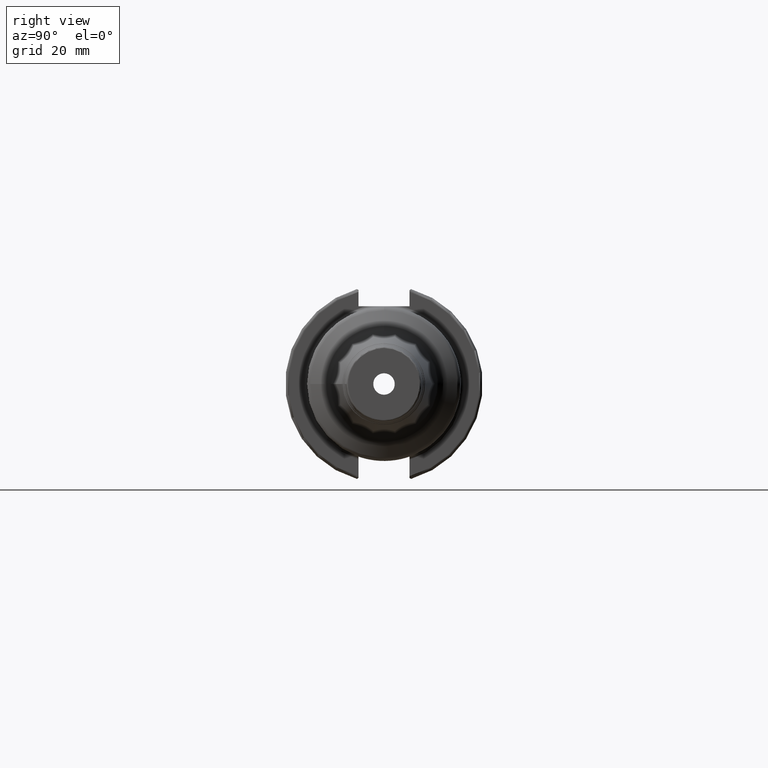
[diagram: clean part render]
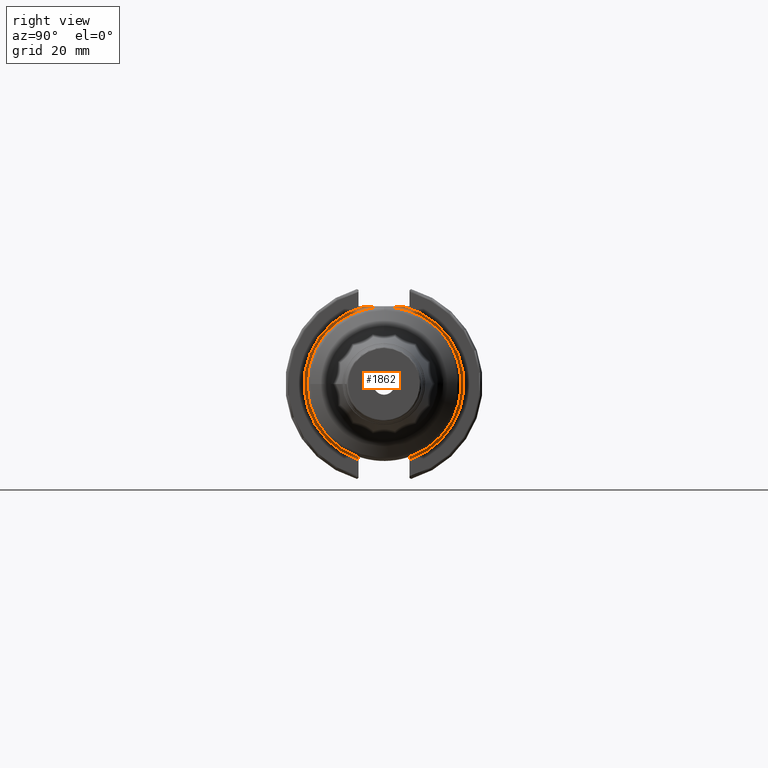
[diagram: same view with one face highlighted and labeled with its STEP entity id]
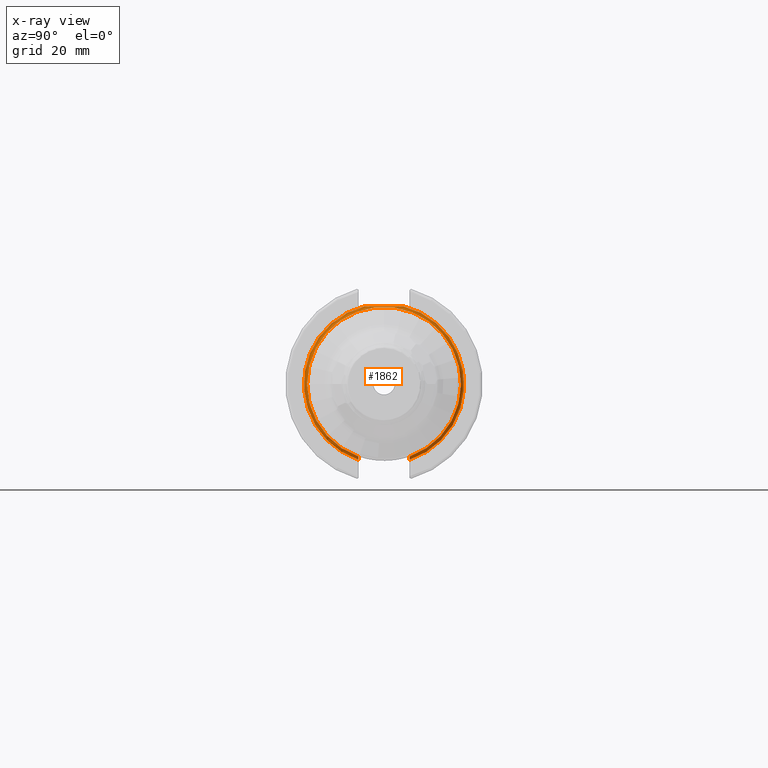
[diagram: x-ray of the same camera — body ghosted, the highlighted face saturated]
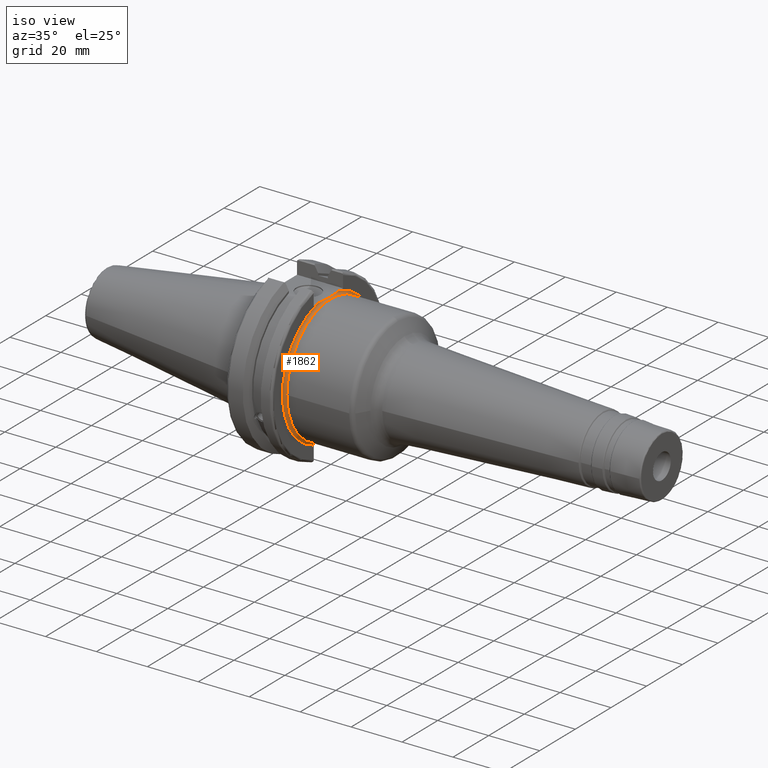
[diagram: same view with one face highlighted and labeled with its STEP entity id]
A machine part, right view. The second image highlights one B-rep face of the part: STEP entity #1862.
The next image is the same camera in x-ray: the body ghosted, the highlighted face saturated — about 3% of this face is hidden behind the body in this view.
A second angle (iso view) of the same face is appended — the face is thin or edge-on in the first view.
In plain terms, the highlighted toroidal blend (fillet) surface has major radius 25.75 mm and minor (blend) radius 1 mm.
Its self-contained STEP definition (entity closure, byte-faithful):
#82=B_SPLINE_CURVE_WITH_KNOTS('',3,(#2953,#2954,#2955,#2956,#2957,#2958,
#2959,#2960,#2961,#2962),.UNSPECIFIED.,.F.,.F.,(4,2,2,2,4),(1.28229186042809,
1.47392183654147,1.862003561099,2.25008528565653,2.44171526176991),
 .UNSPECIFIED.);
#83=B_SPLINE_CURVE_WITH_KNOTS('',3,(#2966,#2967,#2968,#2969,#2970,#2971,
#2972,#2973,#2974,#2975),.UNSPECIFIED.,.F.,.F.,(4,2,2,2,4),(0.152036209068872,
0.19179652975479,0.230554749961229,0.268011696377573,0.304368806480559),
 .UNSPECIFIED.);
#84=B_SPLINE_CURVE_WITH_KNOTS('',3,(#2981,#2982,#2983,#2984,#2985,#2986,
#2987,#2988,#2989,#2990),.UNSPECIFIED.,.F.,.F.,(4,2,2,2,4),(0.304368806480559,
0.340725916583545,0.378182862999889,0.416941083206328,0.456701403892246),
 .UNSPECIFIED.);
#401=FACE_OUTER_BOUND('',#510,.T.);
#510=EDGE_LOOP('',(#1342,#1343,#1344,#1345,#1346,#1347,#1348));
#660=CIRCLE('',#2041,25.75);
#661=CIRCLE('',#2042,24.75);
#662=CIRCLE('',#2043,24.75);
#663=CIRCLE('',#2044,25.75);
#780=VERTEX_POINT('',#2951);
#781=VERTEX_POINT('',#2952);
#782=VERTEX_POINT('',#2963);
#783=VERTEX_POINT('',#2965);
#784=VERTEX_POINT('',#2976);
#785=VERTEX_POINT('',#2978);
#786=VERTEX_POINT('',#2980);
#993=EDGE_CURVE('',#780,#781,#82,.F.);
#994=EDGE_CURVE('',#780,#782,#660,.T.);
#995=EDGE_CURVE('',#782,#783,#83,.T.);
#996=EDGE_CURVE('',#783,#784,#661,.T.);
#997=EDGE_CURVE('',#784,#785,#662,.T.);
#998=EDGE_CURVE('',#785,#786,#84,.T.);
#999=EDGE_CURVE('',#786,#781,#663,.T.);
#1342=ORIENTED_EDGE('',*,*,#993,.F.);
#1343=ORIENTED_EDGE('',*,*,#994,.T.);
#1344=ORIENTED_EDGE('',*,*,#995,.T.);
#1345=ORIENTED_EDGE('',*,*,#996,.T.);
#1346=ORIENTED_EDGE('',*,*,#997,.T.);
#1347=ORIENTED_EDGE('',*,*,#998,.T.);
#1348=ORIENTED_EDGE('',*,*,#999,.T.);
#1834=TOROIDAL_SURFACE('',#2040,25.75,1.);
#1862=ADVANCED_FACE('',(#401),#1834,.F.);
#2040=AXIS2_PLACEMENT_3D('',#2950,#2372,#2373);
#2041=AXIS2_PLACEMENT_3D('',#2964,#2374,#2375);
#2042=AXIS2_PLACEMENT_3D('',#2977,#2376,#2377);
#2043=AXIS2_PLACEMENT_3D('',#2979,#2378,#2379);
#2044=AXIS2_PLACEMENT_3D('',#2991,#2380,#2381);
#2372=DIRECTION('center_axis',(-1.,0.,0.));
#2373=DIRECTION('ref_axis',(0.,0.,1.));
#2374=DIRECTION('center_axis',(1.,0.,0.));
#2375=DIRECTION('ref_axis',(0.,6.12323399573677E-17,1.));
#2376=DIRECTION('center_axis',(-1.,0.,0.));
#2377=DIRECTION('ref_axis',(0.,6.12323399573677E-17,1.));
#2378=DIRECTION('center_axis',(-1.,0.,0.));
#2379=DIRECTION('ref_axis',(0.,6.12323399573677E-17,1.));
#2380=DIRECTION('center_axis',(1.,0.,0.));
#2381=DIRECTION('ref_axis',(0.,6.12323399573677E-17,1.));
#2950=CARTESIAN_POINT('Origin',(20.05,0.,0.));
#2951=CARTESIAN_POINT('',(19.05,-6.16948133962652,25.));
#2952=CARTESIAN_POINT('',(19.05,6.16948133962652,25.));
#2953=CARTESIAN_POINT('Ctrl Pts',(19.05,6.16948133962652,25.));
#2954=CARTESIAN_POINT('Ctrl Pts',(19.05,5.53071475258193,25.));
#2955=CARTESIAN_POINT('Ctrl Pts',(19.0917093675371,4.76533047486055,25.));
#2956=CARTESIAN_POINT('Ctrl Pts',(19.2334466867335,2.83816328553263,25.));
#2957=CARTESIAN_POINT('Ctrl Pts',(19.3885621722339,1.29360574852511,25.));
#2958=CARTESIAN_POINT('Ctrl Pts',(19.3885621722339,-1.29360574852511,25.));
#2959=CARTESIAN_POINT('Ctrl Pts',(19.2334466867335,-2.83816328553263,25.));
#2960=CARTESIAN_POINT('Ctrl Pts',(19.0917093675371,-4.76533047486055,25.));
#2961=CARTESIAN_POINT('Ctrl Pts',(19.05,-5.53071475258193,25.));
#2962=CARTESIAN_POINT('Ctrl Pts',(19.05,-6.16948133962652,25.));
#2963=CARTESIAN_POINT('',(19.05,-8.19,-24.4128326910254));
#2964=CARTESIAN_POINT('Origin',(19.05,0.,0.));
#2965=CARTESIAN_POINT('',(20.05,-8.19,-23.3556502799644));
#2966=CARTESIAN_POINT('Ctrl Pts',(19.05,-8.19,-24.4128326910254));
#2967=CARTESIAN_POINT('Ctrl Pts',(19.05,-8.19,-24.280298288739));
#2968=CARTESIAN_POINT('Ctrl Pts',(19.079885359023,-8.19,-24.124090110551));
#2969=CARTESIAN_POINT('Ctrl Pts',(19.177275426903,-8.19,-23.8811560320461));
#2970=CARTESIAN_POINT('Ctrl Pts',(19.2609009617474,-8.19,-23.7506111583087));
#2971=CARTESIAN_POINT('Ctrl Pts',(19.4373931081247,-8.19,-23.5678758115065));
#2972=CARTESIAN_POINT('Ctrl Pts',(19.5602603745075,-8.19,-23.4821320058467));
#2973=CARTESIAN_POINT('Ctrl Pts',(19.7864204604307,-8.19,-23.3852265342659));
#2974=CARTESIAN_POINT('Ctrl Pts',(19.92880963299,-8.19,-23.3556502799644));
#2975=CARTESIAN_POINT('Ctrl Pts',(20.05,-8.19,-23.3556502799644));
#2976=CARTESIAN_POINT('',(20.05,-24.75,-3.0310008278897E-15));
#2977=CARTESIAN_POINT('Origin',(20.05,0.,0.));
#2978=CARTESIAN_POINT('',(20.05,8.19,-23.3556502799644));
#2979=CARTESIAN_POINT('Origin',(20.05,0.,0.));
#2980=CARTESIAN_POINT('',(19.05,8.19,-24.4128326910254));
#2981=CARTESIAN_POINT('Ctrl Pts',(20.05,8.19,-23.3556502799644));
#2982=CARTESIAN_POINT('Ctrl Pts',(19.92880963299,8.19,-23.3556502799644));
#2983=CARTESIAN_POINT('Ctrl Pts',(19.7864204604307,8.19,-23.3852265342659));
#2984=CARTESIAN_POINT('Ctrl Pts',(19.5602603745075,8.19,-23.4821320058467));
#2985=CARTESIAN_POINT('Ctrl Pts',(19.4373931081247,8.19,-23.5678758115065));
#2986=CARTESIAN_POINT('Ctrl Pts',(19.2609009617474,8.19,-23.7506111583087));
#2987=CARTESIAN_POINT('Ctrl Pts',(19.177275426903,8.19,-23.8811560320461));
#2988=CARTESIAN_POINT('Ctrl Pts',(19.079885359023,8.19,-24.124090110551));
#2989=CARTESIAN_POINT('Ctrl Pts',(19.05,8.19,-24.280298288739));
#2990=CARTESIAN_POINT('Ctrl Pts',(19.05,8.19,-24.4128326910254));
#2991=CARTESIAN_POINT('Origin',(19.05,0.,0.));